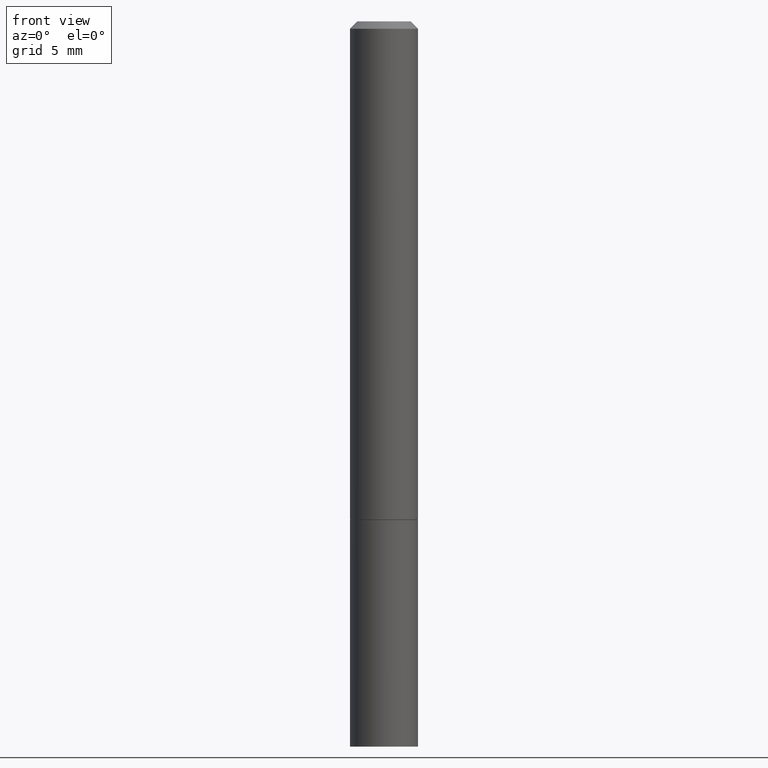
[diagram: clean part render]
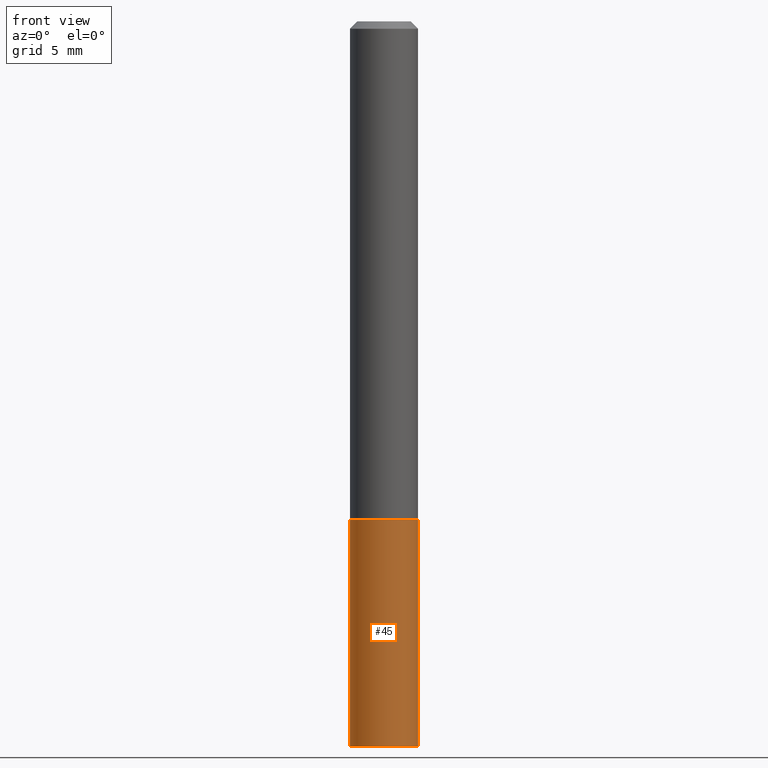
[diagram: same view with one face highlighted and labeled with its STEP entity id]
A machine part, front view. The second image highlights one B-rep face of the part: STEP entity #45.
In plain terms, the highlighted cylindrical surface (edge-blend (fillet) strip) has radius 2.3813 mm, axis along (-0, 0, 1).
Its self-contained STEP definition (entity closure, byte-faithful):
#9 = DIRECTION ( 'NONE',  ( 1.000000000000000000, -6.982962677686261189E-15, 0.000000000000000000 ) ) ;
#14 = DIRECTION ( 'NONE',  ( 1.000000000000000000, -6.982962677686265922E-15, 4.876176775795935793E-29 ) ) ;
#20 = ORIENTED_EDGE ( 'NONE', *, *, #296, .F. ) ;
#23 = VERTEX_POINT ( 'NONE', #129 ) ;
#32 = VECTOR ( 'NONE', #70, 39.37007874015748143 ) ;
#41 = FACE_OUTER_BOUND ( 'NONE', #236, .T. ) ;
#42 = CARTESIAN_POINT ( 'NONE',  ( 3.362519608504562260E-29, -4.800786840909324930E-15, -1.375000000000000000 ) ) ;
#45 = ADVANCED_FACE ( 'NONE', ( #41 ), #164, .T. ) ;
#70 = DIRECTION ( 'NONE',  ( -2.445468806185136877E-29, 3.491481338843145188E-15, 1.000000000000000000 ) ) ;
#92 = LINE ( 'NONE', #339, #216 ) ;
#108 = VERTEX_POINT ( 'NONE', #315 ) ;
#110 = ORIENTED_EDGE ( 'NONE', *, *, #335, .T. ) ;
#115 = CARTESIAN_POINT ( 'NONE',  ( -0.09375000000000001388, -5.225740944522714123E-15, -1.375000000000000000 ) ) ;
#129 = CARTESIAN_POINT ( 'NONE',  ( 0.09374999999999984734, -7.626134364977371460E-15, -2.000000000000000000 ) ) ;
#132 = DIRECTION ( 'NONE',  ( -2.445468806185136877E-29, 3.491481338843145188E-15, 1.000000000000000000 ) ) ;
#164 = CYLINDRICAL_SURFACE ( 'NONE', #303, 0.09375000000000001388 ) ;
#166 = CARTESIAN_POINT ( 'NONE',  ( 0.000000000000000000, 0.000000000000000000, 0.000000000000000000 ) ) ;
#205 = AXIS2_PLACEMENT_3D ( 'NONE', #253, #225, #9 ) ;
#216 = VECTOR ( 'NONE', #132, 39.37007874015748143 ) ;
#225 = DIRECTION ( 'NONE',  ( -2.445468806185136597E-29, 3.491481338843145583E-15, 1.000000000000000000 ) ) ;
#236 = EDGE_LOOP ( 'NONE', ( #20, #299, #110, #306 ) ) ;
#250 = VERTEX_POINT ( 'NONE', #115 ) ;
#253 = CARTESIAN_POINT ( 'NONE',  ( 4.890937612370273194E-29, -6.982962677686291165E-15, -2.000000000000000000 ) ) ;
#254 = VERTEX_POINT ( 'NONE', #316 ) ;
#272 = EDGE_CURVE ( 'NONE', #108, #23, #327, .T. ) ;
#288 = DIRECTION ( 'NONE',  ( -2.445468806185136597E-29, 3.491481338843145583E-15, 1.000000000000000000 ) ) ;
#290 = DIRECTION ( 'NONE',  ( 1.000000000000000000, -6.982962677686261189E-15, 0.000000000000000000 ) ) ;
#296 = EDGE_CURVE ( 'NONE', #108, #250, #369, .T. ) ;
#299 = ORIENTED_EDGE ( 'NONE', *, *, #272, .T. ) ;
#303 = AXIS2_PLACEMENT_3D ( 'NONE', #166, #288, #14 ) ;
#306 = ORIENTED_EDGE ( 'NONE', *, *, #388, .F. ) ;
#315 = CARTESIAN_POINT ( 'NONE',  ( -0.09374999999999984734, -6.328309926653205239E-15, -2.000000000000000000 ) ) ;
#316 = CARTESIAN_POINT ( 'NONE',  ( 0.09375000000000001388, -5.455439591942412434E-15, -1.375000000000000000 ) ) ;
#327 = CIRCLE ( 'NONE', #205, 0.09375000000000001388 ) ;
#335 = EDGE_CURVE ( 'NONE', #23, #254, #92, .T. ) ;
#339 = CARTESIAN_POINT ( 'NONE',  ( 0.09375000000000001388, -6.546527510330875041E-16, 4.571415727308690506E-30 ) ) ;
#350 = DIRECTION ( 'NONE',  ( -2.445468806185136597E-29, 3.491481338843145583E-15, 1.000000000000000000 ) ) ;
#363 = AXIS2_PLACEMENT_3D ( 'NONE', #42, #350, #290 ) ;
#366 = CARTESIAN_POINT ( 'NONE',  ( -0.09375000000000001388, 6.661338147750940229E-16, -4.611501647113973995E-30 ) ) ;
#369 = LINE ( 'NONE', #366, #32 ) ;
#383 = CIRCLE ( 'NONE', #363, 0.09375000000000001388 ) ;
#388 = EDGE_CURVE ( 'NONE', #250, #254, #383, .T. ) ;